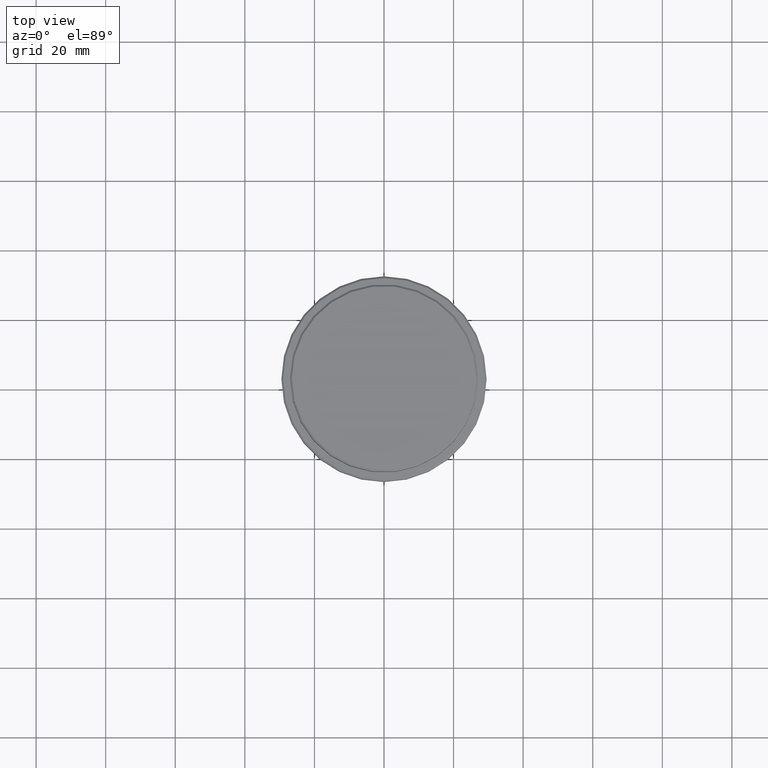
[diagram: clean part render]
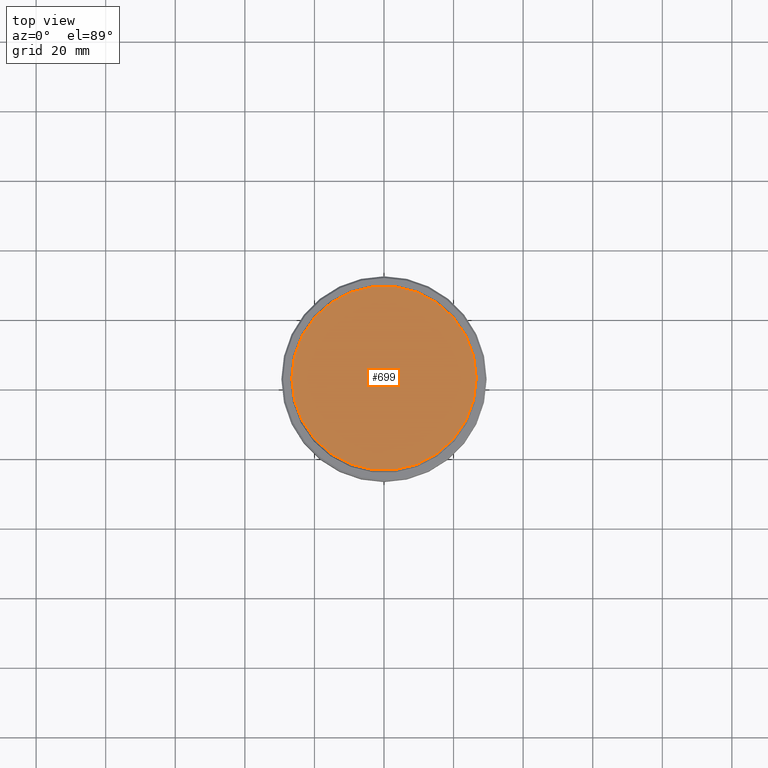
[diagram: same view with one face highlighted and labeled with its STEP entity id]
A machine part, top view. The second image highlights one B-rep face of the part: STEP entity #699.
In plain terms, the highlighted planar face has unit normal (0, -0, 1).
Its self-contained STEP definition (entity closure, byte-faithful):
#2 = DIRECTION ( 'NONE',  ( 1.000000000000000000, 0.000000000000000000, 0.000000000000000000 ) ) ;
#7 = DIRECTION ( 'NONE',  ( 1.000000000000000000, 0.000000000000000000, 0.000000000000000000 ) ) ;
#76 = VERTEX_POINT ( 'NONE', #1313 ) ;
#91 = EDGE_CURVE ( 'NONE', #76, #1139, #562, .T. ) ;
#154 = DIRECTION ( 'NONE',  ( 1.000000000000000000, 0.000000000000000000, 0.000000000000000000 ) ) ;
#240 = AXIS2_PLACEMENT_3D ( 'NONE', #1362, #1237, #154 ) ;
#366 = FACE_OUTER_BOUND ( 'NONE', #1096, .T. ) ;
#559 = DIRECTION ( 'NONE',  ( -0.000000000000000000, -0.000000000000000000, 1.000000000000000000 ) ) ;
#560 = CARTESIAN_POINT ( 'NONE',  ( 0.000000000000000000, 0.000000000000000000, 0.000000000000000000 ) ) ;
#562 = CIRCLE ( 'NONE', #857, 26.50000000000002487 ) ;
#672 = DIRECTION ( 'NONE',  ( -0.000000000000000000, -0.000000000000000000, 1.000000000000000000 ) ) ;
#699 = ADVANCED_FACE ( 'NONE', ( #366 ), #703, .T. ) ;
#703 = PLANE ( 'NONE',  #240 ) ;
#810 = ORIENTED_EDGE ( 'NONE', *, *, #1402, .T. ) ;
#857 = AXIS2_PLACEMENT_3D ( 'NONE', #1204, #559, #7 ) ;
#913 = ORIENTED_EDGE ( 'NONE', *, *, #91, .T. ) ;
#920 = CARTESIAN_POINT ( 'NONE',  ( -26.50000000000002487, 0.000000000000000000, 0.000000000000000000 ) ) ;
#1096 = EDGE_LOOP ( 'NONE', ( #810, #913 ) ) ;
#1139 = VERTEX_POINT ( 'NONE', #920 ) ;
#1178 = AXIS2_PLACEMENT_3D ( 'NONE', #560, #672, #2 ) ;
#1204 = CARTESIAN_POINT ( 'NONE',  ( 0.000000000000000000, 0.000000000000000000, 0.000000000000000000 ) ) ;
#1237 = DIRECTION ( 'NONE',  ( 0.000000000000000000, -0.000000000000000000, 1.000000000000000000 ) ) ;
#1313 = CARTESIAN_POINT ( 'NONE',  ( 26.50000000000002487, 3.275930187719171524E-15, 0.000000000000000000 ) ) ;
#1362 = CARTESIAN_POINT ( 'NONE',  ( 0.000000000000000000, 0.000000000000000000, 0.000000000000000000 ) ) ;
#1387 = CIRCLE ( 'NONE', #1178, 26.50000000000002487 ) ;
#1402 = EDGE_CURVE ( 'NONE', #1139, #76, #1387, .T. ) ;